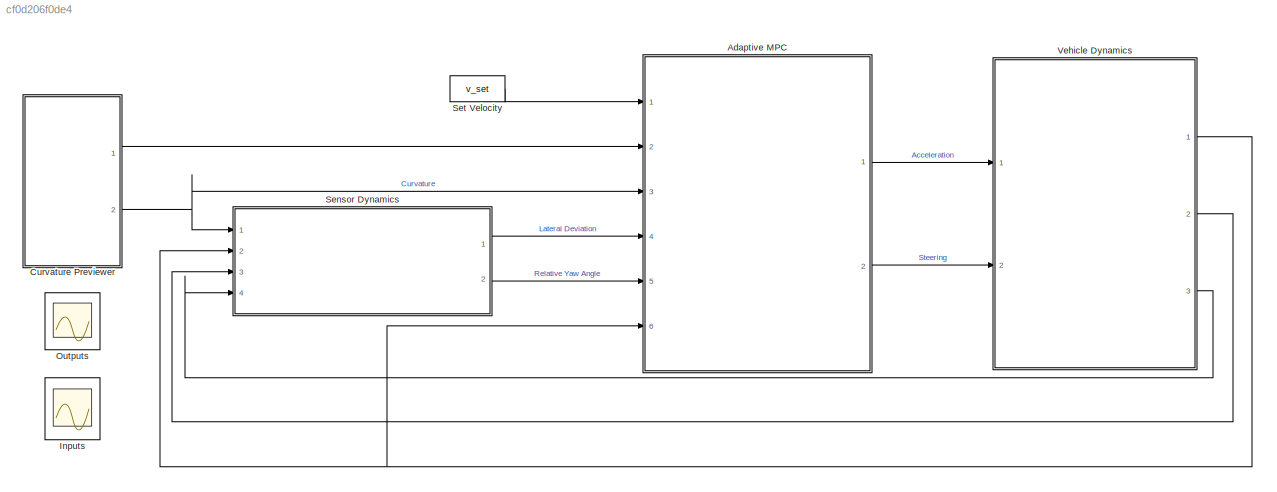
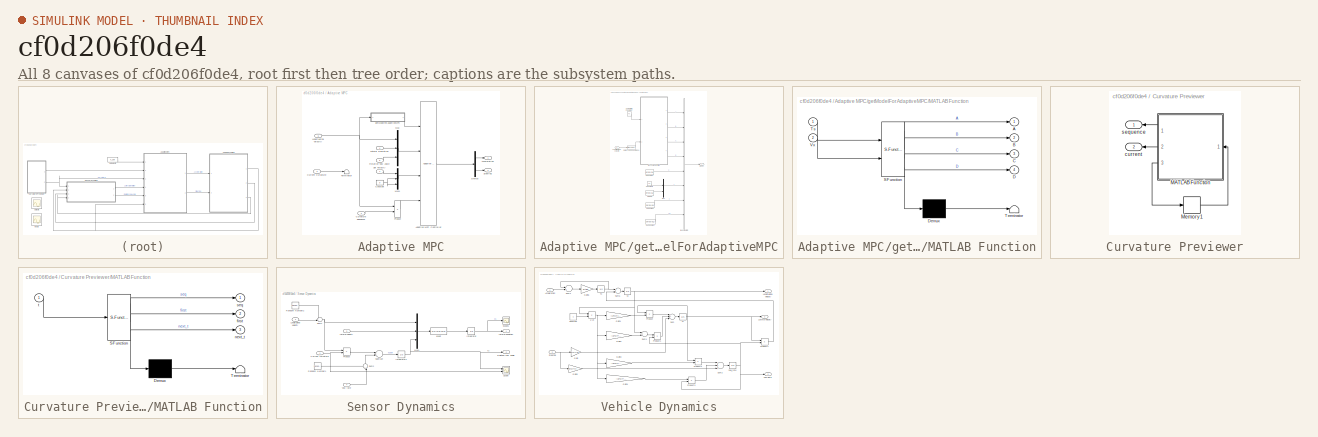
[diagram: thumbnail index - all 8 canvases of the model, root first then tree order]
MODEL slx_cf0d206f0de4
KIND model
CONFIG AbsTol = auto
CONFIG EnableMultiTasking = off
CONFIG FixedStep = auto
CONFIG MaxStep = auto
CONFIG MinStep = auto
CONFIG RelTol = 1e-3
CONFIG SampleTimeConstraint = Unconstrained
CONFIG Solver = VariableStepAuto
CONFIG SolverName = VariableStepAuto
CONFIG StartTime = 0.0
CONFIG StopTime = Duration
BLOCK [SubSystem] Adaptive MPC
  Ports = [6, 2]
  RequestExecContextInheritance = off
  VariantControl = controller_type == 2
BLOCK [Outport] Adaptive MPC/ Steering
  IconDisplay = Port number
  Port = 2
BLOCK [Outport] Adaptive MPC/Acceleration
  IconDisplay = Port number
BLOCK [Reference] Adaptive MPC/Adaptive MPC Controller  REF=mpclib/Adaptive MPC Controller  (lib defined in mdl_ae329e0e0455)
  Ports = [4, 1]
  SCDEnableBlockLinearizationSpecification = on
  SourceBlock = mpclib/Adaptive MPC Controller
  SourceProductBaseCode = MP
  SourceProductName = Model Predictive Control Toolbox
  SourceType = Adaptive MPC
BLOCK [Constant] Adaptive MPC/Constant
  Value = 0
BLOCK [Inport] Adaptive MPC/Current Curvature
  IconDisplay = Port number
  Port = 3
BLOCK [Inport] Adaptive MPC/Curvature Sequence
  IconDisplay = Port number
  Port = 2
BLOCK [Demux] Adaptive MPC/Demux
  DisplayOption = bar
  Outputs = 2
  Ports = [1, 2]
BLOCK [Inport] Adaptive MPC/Lateral Deviation
  IconDisplay = Port number
  Port = 4
BLOCK [Inport] Adaptive MPC/Longitudinal Velocity
  IconDisplay = Port number
  Port = 6
BLOCK [Mux] Adaptive MPC/Mux
  DisplayOption = bar
  Inputs = 3
  Ports = [3, 1]
BLOCK [Mux] Adaptive MPC/Mux1
  DisplayOption = bar
  Inputs = 3
  Ports = [3, 1]
BLOCK [Product] Adaptive MPC/Product
  InputSameDT = off
  OutDataTypeStr = Inherit: Inherit via internal rule
  Ports = [2, 1]
  RndMeth = Floor
  SaturateOnIntegerOverflow = off
BLOCK [Inport] Adaptive MPC/Relative Yaw Angle
  IconDisplay = Port number
  Port = 5
BLOCK [Inport] Adaptive MPC/Set velocity
  IconDisplay = Port number
BLOCK [Terminator] Adaptive MPC/Terminator
BLOCK [SubSystem] Adaptive MPC/getModelForAdaptiveMPC
  Ports = [1, 1]
  RequestExecContextInheritance = off
BLOCK [BusCreator] Adaptive MPC/getModelForAdaptiveMPC/Bus Creator2
  DisplayOption = bar
  InheritFromInputs = on
  Inputs = 8
  Ports = [8, 1]
BLOCK [Constant] Adaptive MPC/getModelForAdaptiveMPC/Constant3
  Value = v0
BLOCK [Constant] Adaptive MPC/getModelForAdaptiveMPC/DX Constant
  Value = zeros(6,1)
  VectorParams1D = off
BLOCK [DataTypeConversion] Adaptive MPC/getModelForAdaptiveMPC/Data Type Conversion1
  RndMeth = Floor
  SaturateOnIntegerOverflow = off
BLOCK [Inport] Adaptive MPC/getModelForAdaptiveMPC/Longitudinal velocity
  IconDisplay = Port number
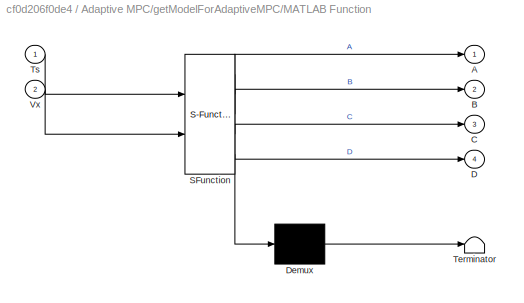
BLOCK [SubSystem] Adaptive MPC/getModelForAdaptiveMPC/MATLAB Function
  ErrorFcn = Stateflow.Translate.translate
  PermitHierarchicalResolution = ExplicitOnly
  Ports = [2, 4]
  RequestExecContextInheritance = off
  SFBlockType = MATLAB Function
  TreatAsAtomicUnit = on
BLOCK [Demux] Adaptive MPC/getModelForAdaptiveMPC/MATLAB Function/ Demux 
  Outputs = 1
  Ports = [1, 1]
BLOCK [S-Function] Adaptive MPC/getModelForAdaptiveMPC/MATLAB Function/ SFunction 
  EnableBusSupport = on
  FunctionName = sf_sfun
  PortCounts = [2 5]
  Ports = [2, 5]
  SFcnIsStateOwnerBlock = off
  SFunctionDeploymentMode = off
  Tag = Stateflow S-Function lane_following_AMPC 2
BLOCK [Terminator] Adaptive MPC/getModelForAdaptiveMPC/MATLAB Function/ Terminator 
BLOCK [Outport] Adaptive MPC/getModelForAdaptiveMPC/MATLAB Function/A
  IconDisplay = Port number
BLOCK [Outport] Adaptive MPC/getModelForAdaptiveMPC/MATLAB Function/B
  IconDisplay = Port number
  Port = 2
BLOCK [Outport] Adaptive MPC/getModelForAdaptiveMPC/MATLAB Function/C
  IconDisplay = Port number
  Port = 3
BLOCK [Outport] Adaptive MPC/getModelForAdaptiveMPC/MATLAB Function/D
  IconDisplay = Port number
  Port = 4
BLOCK [Inport] Adaptive MPC/getModelForAdaptiveMPC/MATLAB Function/Ts
  IconDisplay = Port number
BLOCK [Inport] Adaptive MPC/getModelForAdaptiveMPC/MATLAB Function/Vx
  IconDisplay = Port number
  Port = 2
BLOCK [Outport] Adaptive MPC/getModelForAdaptiveMPC/Model
  IconDisplay = Port number
BLOCK [Mux] Adaptive MPC/getModelForAdaptiveMPC/Mux
  DisplayOption = bar
  Inputs = 2
  Ports = [2, 1]
BLOCK [Constant] Adaptive MPC/getModelForAdaptiveMPC/Sample time constant
  Value = Ts
BLOCK [Constant] Adaptive MPC/getModelForAdaptiveMPC/U Constant
  Value = zeros(3,1)
  VectorParams1D = off
BLOCK [Constant] Adaptive MPC/getModelForAdaptiveMPC/X Constant
  Value = zeros(6,1)
  VectorParams1D = off
BLOCK [Constant] Adaptive MPC/getModelForAdaptiveMPC/ZEROS
  Value = zeros(2,1)
  VectorParams1D = off
BLOCK [SubSystem] Curvature Previewer
  Ports = [0, 2]
  RequestExecContextInheritance = off
BLOCK [SubSystem] Curvature Previewer/MATLAB Function
  ErrorFcn = Stateflow.Translate.translate
  PermitHierarchicalResolution = ExplicitOnly
  Ports = [1, 3]
  RequestExecContextInheritance = off
  SFBlockType = MATLAB Function
  TreatAsAtomicUnit = on
BLOCK [Demux] Curvature Previewer/MATLAB Function/ Demux 
  Outputs = 1
  Ports = [1, 1]
BLOCK [S-Function] Curvature Previewer/MATLAB Function/ SFunction 
  EnableBusSupport = on
  FunctionName = sf_sfun
  Parameters = data,steps
  PortCounts = [1 4]
  Ports = [1, 4]
  SFcnIsStateOwnerBlock = off
  SFunctionDeploymentMode = off
  Tag = Stateflow S-Function lane_following_AMPC 1
BLOCK [Terminator] Curvature Previewer/MATLAB Function/ Terminator 
BLOCK [Outport] Curvature Previewer/MATLAB Function/first
  IconDisplay = Port number
  Port = 2
BLOCK [Outport] Curvature Previewer/MATLAB Function/next_t
  IconDisplay = Port number
  Port = 3
BLOCK [Outport] Curvature Previewer/MATLAB Function/seq
  IconDisplay = Port number
BLOCK [Inport] Curvature Previewer/MATLAB Function/t
  IconDisplay = Port number
BLOCK [Memory] Curvature Previewer/Memory1
  InheritSampleTime = on
  LinearizeAsDelay = on
BLOCK [Outport] Curvature Previewer/current
  IconDisplay = Port number
  Port = 2
BLOCK [Outport] Curvature Previewer/sequence
  IconDisplay = Port number
BLOCK [Scope] Inputs
  Floating = on
  NumInputPorts = 1
  Ports = []
  ScopeSpecificationString = Simulink.scopes.TimeScopeBlockCfg('CurrentConfiguration', extmgr.ConfigurationSet(extmgr.Configuration('Core','General UI',true),extmgr.Configuration('Core','Source UI',true),extmgr.Configuration('Sources','WiredSimulink',true,'DataLoggingVariableName','ScopeData1'),extmgr.Configuration('Visuals','Time Domain',true,'SerializedDisplays',{struct('MinYLimReal','-0.19396','MaxYLimReal','0.11266','YLab...<+2729ch>
BLOCK [Scope] Outputs
  Floating = on
  NumInputPorts = 1
  Ports = []
  ScopeSpecificationString = Simulink.scopes.TimeScopeBlockCfg('CurrentConfiguration', extmgr.ConfigurationSet(extmgr.Configuration('Core','General UI',true),extmgr.Configuration('Core','Source UI',true),extmgr.Configuration('Sources','WiredSimulink',true),extmgr.Configuration('Visuals','Time Domain',true,'SerializedDisplays',{struct('MinYLimReal','14.34928','MaxYLimReal','20.85652','YLabelReal','','MinYLimMag','14.34928','Ma...<+2692ch>
BLOCK [SubSystem] Sensor Dynamics
  Ports = [4, 2]
  RequestExecContextInheritance = off
BLOCK [Inport] Sensor Dynamics/Current curvature
  IconDisplay = Port number
BLOCK [Integrator] Sensor Dynamics/Integrator
  Ports = [1, 1]
BLOCK [Integrator] Sensor Dynamics/Integrator2
  Ports = [1, 1]
BLOCK [Outport] Sensor Dynamics/Lateral deviation
  IconDisplay = Port number
BLOCK [Inport] Sensor Dynamics/Lateral velocity
  IconDisplay = Port number
  Port = 3
BLOCK [Inport] Sensor Dynamics/Longitudinal velocity
  IconDisplay = Port number
  Port = 2
BLOCK [Mux] Sensor Dynamics/Mux1
  DisplayOption = bar
  Inputs = [1 1 1]
  Ports = [3, 1]
BLOCK [Product] Sensor Dynamics/Product
  InputSameDT = off
  OutDataTypeStr = Inherit: Inherit via internal rule
  Ports = [2, 1]
  RndMeth = Floor
  SaturateOnIntegerOverflow = off
BLOCK [RandomNumber] Sensor Dynamics/Random Number1
  SampleTime = Ts
  Variance = 0.003
BLOCK [RandomNumber] Sensor Dynamics/Random Number2
  SampleTime = Ts
  Variance = 0.3
BLOCK [Outport] Sensor Dynamics/Relative yaw angle
  IconDisplay = Port number
  Port = 2
BLOCK [Scope] Sensor Dynamics/Scope
  Floating = off
  NumInputPorts = 2
  Ports = [2]
  ScopeSpecificationString = Simulink.scopes.TimeScopeBlockCfg('CurrentConfiguration', extmgr.ConfigurationSet(extmgr.Configuration('Core','General UI',true),extmgr.Configuration('Core','Source UI',true),extmgr.Configuration('Sources','WiredSimulink',true,'DataLoggingVariableName','ScopeData1'),extmgr.Configuration('Visuals','Time Domain',true,'SerializedDisplays',{struct('MinYLimReal','-0.04688','MaxYLimReal','0.05204','YLab...<+1417ch>
BLOCK [Scope] Sensor Dynamics/Scope1
  Floating = off
  NumInputPorts = 1
  Ports = [1]
  ScopeSpecificationString = Simulink.scopes.TimeScopeBlockCfg('CurrentConfiguration', extmgr.ConfigurationSet(extmgr.Configuration('Core','General UI',true),extmgr.Configuration('Core','Source UI',true),extmgr.Configuration('Sources','WiredSimulink',true,'DataLoggingVariableName','ScopeData1'),extmgr.Configuration('Visuals','Time Domain',true,'SerializedDisplays',{struct('MinYLimReal','-0.01564','MaxYLimReal','0.01736','YLab...<+1388ch>
BLOCK [Sum] Sensor Dynamics/Subtract
  InputSameDT = off
  Inputs = -+
  OutDataTypeStr = Inherit: Inherit via internal rule
  Ports = [2, 1]
  SaturateOnIntegerOverflow = off
BLOCK [Sum] Sensor Dynamics/Sum1
  IconShape = round
  InputSameDT = off
  Inputs = ++|
  OutDataTypeStr = Inherit: Inherit via internal rule
  Ports = [2, 1]
  SaturateOnIntegerOverflow = off
BLOCK [Sum] Sensor Dynamics/Sum2
  IconShape = round
  InputSameDT = off
  Inputs = ++|
  OutDataTypeStr = Inherit: Inherit via internal rule
  Ports = [2, 1]
  SaturateOnIntegerOverflow = off
BLOCK [Inport] Sensor Dynamics/Yaw rate
  IconDisplay = Port number
  Port = 4
BLOCK [Fcn] Sensor Dynamics/e1dot
  Expr = u(1)*u(3)+u(2)
BLOCK [Constant] Set Velocity
  Value = v_set
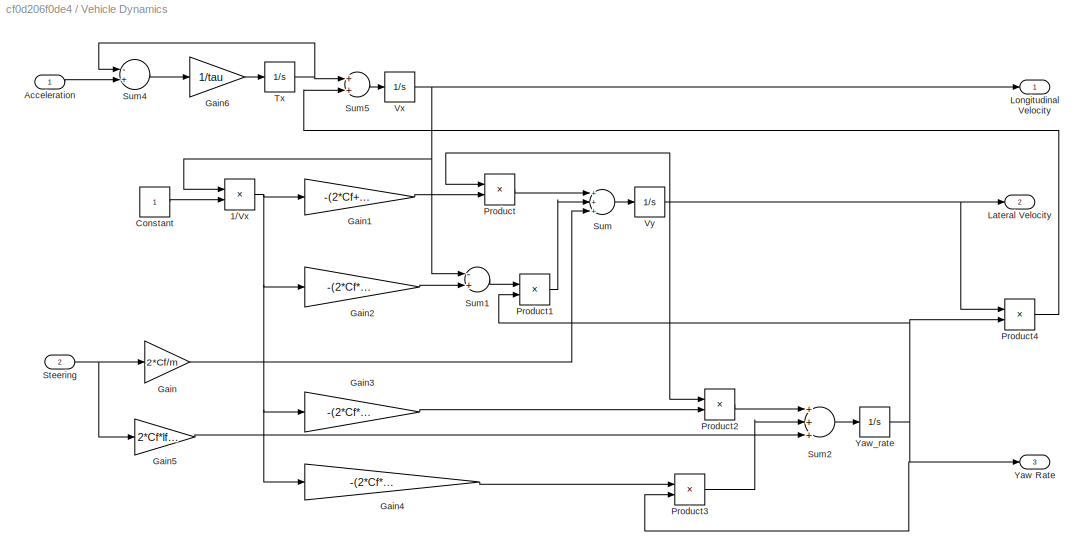
BLOCK [SubSystem] Vehicle Dynamics
  Ports = [2, 3]
  RequestExecContextInheritance = off
BLOCK [Product] Vehicle Dynamics/1//Vx
  InputSameDT = off
  Inputs = /*
  OutDataTypeStr = Inherit: Inherit via internal rule
  Ports = [2, 1]
  RndMeth = Floor
  SaturateOnIntegerOverflow = off
BLOCK [Inport] Vehicle Dynamics/Acceleration
  IconDisplay = Port number
BLOCK [Constant] Vehicle Dynamics/Constant
BLOCK [Gain] Vehicle Dynamics/Gain
  Gain = 2*Cf/m
  OutDataTypeStr = Inherit: Inherit via internal rule
  ParamDataTypeStr = Inherit: Inherit via internal rule
  SaturateOnIntegerOverflow = off
BLOCK [Gain] Vehicle Dynamics/Gain1
  Gain = -(2*Cf+2*Cr)/m
  OutDataTypeStr = Inherit: Inherit via internal rule
  ParamDataTypeStr = Inherit: Inherit via internal rule
  SaturateOnIntegerOverflow = off
BLOCK [Gain] Vehicle Dynamics/Gain2
  Gain = -(2*Cf*lf-2*Cr*lr)/m
  OutDataTypeStr = Inherit: Inherit via internal rule
  ParamDataTypeStr = Inherit: Inherit via internal rule
  SaturateOnIntegerOverflow = off
BLOCK [Gain] Vehicle Dynamics/Gain3
  Gain = -(2*Cf*lf-2*Cr*lr)/Iz
  OutDataTypeStr = Inherit: Inherit via internal rule
  ParamDataTypeStr = Inherit: Inherit via internal rule
  SaturateOnIntegerOverflow = off
BLOCK [Gain] Vehicle Dynamics/Gain4
  Gain = -(2*Cf*lf^2+2*Cr*lr^2)/Iz
  OutDataTypeStr = Inherit: Inherit via internal rule
  ParamDataTypeStr = Inherit: Inherit via internal rule
  SaturateOnIntegerOverflow = off
BLOCK [Gain] Vehicle Dynamics/Gain5
  Gain = 2*Cf*lf/Iz
  OutDataTypeStr = Inherit: Inherit via internal rule
  ParamDataTypeStr = Inherit: Inherit via internal rule
  SaturateOnIntegerOverflow = off
BLOCK [Gain] Vehicle Dynamics/Gain6
  Gain = 1/tau
  OutDataTypeStr = Inherit: Inherit via internal rule
  ParamDataTypeStr = Inherit: Inherit via internal rule
  SaturateOnIntegerOverflow = off
BLOCK [Outport] Vehicle Dynamics/Lateral Velocity
  IconDisplay = Port number
  Port = 2
BLOCK [Outport] Vehicle Dynamics/Longitudinal Velocity
  IconDisplay = Port number
BLOCK [Product] Vehicle Dynamics/Product
  InputSameDT = off
  OutDataTypeStr = Inherit: Inherit via internal rule
  Ports = [2, 1]
  RndMeth = Floor
  SaturateOnIntegerOverflow = off
BLOCK [Product] Vehicle Dynamics/Product1
  InputSameDT = off
  OutDataTypeStr = Inherit: Inherit via internal rule
  Ports = [2, 1]
  RndMeth = Floor
  SaturateOnIntegerOverflow = off
BLOCK [Product] Vehicle Dynamics/Product2
  InputSameDT = off
  OutDataTypeStr = Inherit: Inherit via internal rule
  Ports = [2, 1]
  RndMeth = Floor
  SaturateOnIntegerOverflow = off
BLOCK [Product] Vehicle Dynamics/Product3
  InputSameDT = off
  OutDataTypeStr = Inherit: Inherit via internal rule
  Ports = [2, 1]
  RndMeth = Floor
  SaturateOnIntegerOverflow = off
BLOCK [Product] Vehicle Dynamics/Product4
  InputSameDT = off
  OutDataTypeStr = Inherit: Inherit via internal rule
  Ports = [2, 1]
  RndMeth = Floor
  SaturateOnIntegerOverflow = off
BLOCK [Inport] Vehicle Dynamics/Steering
  IconDisplay = Port number
  Port = 2
BLOCK [Sum] Vehicle Dynamics/Sum
  InputSameDT = off
  Inputs = +++
  OutDataTypeStr = Inherit: Inherit via internal rule
  Ports = [3, 1]
  SaturateOnIntegerOverflow = off
BLOCK [Sum] Vehicle Dynamics/Sum1
  InputSameDT = off
  Inputs = -+
  OutDataTypeStr = Inherit: Inherit via internal rule
  Ports = [2, 1]
  SaturateOnIntegerOverflow = off
BLOCK [Sum] Vehicle Dynamics/Sum2
  InputSameDT = off
  Inputs = +++
  OutDataTypeStr = Inherit: Inherit via internal rule
  Ports = [3, 1]
  SaturateOnIntegerOverflow = off
BLOCK [Sum] Vehicle Dynamics/Sum4
  InputSameDT = off
  Inputs = -+
  OutDataTypeStr = Inherit: Inherit via internal rule
  Ports = [2, 1]
  SaturateOnIntegerOverflow = off
BLOCK [Sum] Vehicle Dynamics/Sum5
  InputSameDT = off
  OutDataTypeStr = Inherit: Inherit via internal rule
  Ports = [2, 1]
  SaturateOnIntegerOverflow = off
BLOCK [Integrator] Vehicle Dynamics/Tx
  Ports = [1, 1]
BLOCK [Integrator] Vehicle Dynamics/Vx
  InitialCondition = v0
  Ports = [1, 1]
BLOCK [Integrator] Vehicle Dynamics/Vy
  Ports = [1, 1]
BLOCK [Outport] Vehicle Dynamics/Yaw Rate
  IconDisplay = Port number
  Port = 3
BLOCK [Integrator] Vehicle Dynamics/Yaw_rate 
  Ports = [1, 1]
ANNOTATION Sensor Dynamics: e2
LINE Adaptive MPC/Adaptive MPC Controller:1 -> Adaptive MPC/Demux:1
NET Adaptive MPC/Constant:1 -> Adaptive MPC/Mux1:2, Adaptive MPC/Mux1:3
LINE Adaptive MPC/Current Curvature:1 -> Adaptive MPC/Terminator:1
LINE Adaptive MPC/Curvature Sequence:1 -> Adaptive MPC/Product:2
LINE Adaptive MPC/Demux:1 -> Adaptive MPC/Acceleration:1
LINE Adaptive MPC/Demux:2 -> Adaptive MPC/ Steering:1
LINE Adaptive MPC/Lateral Deviation:1 -> Adaptive MPC/Mux:2
NET Adaptive MPC/Longitudinal Velocity:1 -> Adaptive MPC/Mux:1, Adaptive MPC/Product:1, Adaptive MPC/getModelForAdaptiveMPC:1
LINE Adaptive MPC/Mux1:1 -> Adaptive MPC/Adaptive MPC Controller:3
LINE Adaptive MPC/Mux:1 -> Adaptive MPC/Adaptive MPC Controller:2
LINE Adaptive MPC/Product:1 -> Adaptive MPC/Adaptive MPC Controller:4
LINE Adaptive MPC/Relative Yaw Angle:1 -> Adaptive MPC/Mux:3
LINE Adaptive MPC/Set velocity:1 -> Adaptive MPC/Mux1:1
LINE Adaptive MPC/getModelForAdaptiveMPC/Bus Creator2:1 -> Adaptive MPC/getModelForAdaptiveMPC/Model:1
LINE Adaptive MPC/getModelForAdaptiveMPC/Constant3:1 -> Adaptive MPC/getModelForAdaptiveMPC/Mux:1
LINE Adaptive MPC/getModelForAdaptiveMPC/DX Constant:1 -> Adaptive MPC/getModelForAdaptiveMPC/Bus Creator2:8
LINE Adaptive MPC/getModelForAdaptiveMPC/Data Type Conversion1:1 -> Adaptive MPC/getModelForAdaptiveMPC/MATLAB Function:2
LINE Adaptive MPC/getModelForAdaptiveMPC/Longitudinal velocity:1 -> Adaptive MPC/getModelForAdaptiveMPC/Data Type Conversion1:1
LINE Adaptive MPC/getModelForAdaptiveMPC/MATLAB Function:1 -> Adaptive MPC/getModelForAdaptiveMPC/Bus Creator2:1
LINE Adaptive MPC/getModelForAdaptiveMPC/MATLAB Function:2 -> Adaptive MPC/getModelForAdaptiveMPC/Bus Creator2:2
LINE Adaptive MPC/getModelForAdaptiveMPC/MATLAB Function:3 -> Adaptive MPC/getModelForAdaptiveMPC/Bus Creator2:3
LINE Adaptive MPC/getModelForAdaptiveMPC/MATLAB Function:4 -> Adaptive MPC/getModelForAdaptiveMPC/Bus Creator2:4
LINE Adaptive MPC/getModelForAdaptiveMPC/Mux:1 -> Adaptive MPC/getModelForAdaptiveMPC/Bus Creator2:6
LINE Adaptive MPC/getModelForAdaptiveMPC/Sample time constant:1 -> Adaptive MPC/getModelForAdaptiveMPC/MATLAB Function:1
LINE Adaptive MPC/getModelForAdaptiveMPC/U Constant:1 -> Adaptive MPC/getModelForAdaptiveMPC/Bus Creator2:5
LINE Adaptive MPC/getModelForAdaptiveMPC/X Constant:1 -> Adaptive MPC/getModelForAdaptiveMPC/Bus Creator2:7
LINE Adaptive MPC/getModelForAdaptiveMPC/ZEROS:1 -> Adaptive MPC/getModelForAdaptiveMPC/Mux:2
LINE Adaptive MPC/getModelForAdaptiveMPC:1 -> Adaptive MPC/Adaptive MPC Controller:1
LINE Adaptive MPC:1 -> Vehicle Dynamics:1
LINE Adaptive MPC:2 -> Vehicle Dynamics:2
LINE Curvature Previewer/MATLAB Function:1 -> Curvature Previewer/sequence:1
LINE Curvature Previewer/MATLAB Function:2 -> Curvature Previewer/current:1
LINE Curvature Previewer/MATLAB Function:3 -> Curvature Previewer/Memory1:1
LINE Curvature Previewer/Memory1:1 -> Curvature Previewer/MATLAB Function:1
LINE Curvature Previewer:1 -> Adaptive MPC:2
NET Curvature Previewer:2 -> Adaptive MPC:3, Sensor Dynamics:1
NET Sensor Dynamics/Current curvature:1 -> Sensor Dynamics/Product:2, Sensor Dynamics/Scope:2
NET Sensor Dynamics/Integrator2:1 -> Sensor Dynamics/Mux1:3, Sensor Dynamics/Relative yaw angle:1, Sensor Dynamics/Scope:1
NET Sensor Dynamics/Integrator:1 -> Sensor Dynamics/Lateral deviation:1, Sensor Dynamics/Scope1:1
LINE Sensor Dynamics/Lateral velocity:1 -> Sensor Dynamics/Mux1:2
LINE Sensor Dynamics/Longitudinal velocity:1 -> Sensor Dynamics/Sum1:2
LINE Sensor Dynamics/Mux1:1 -> Sensor Dynamics/e1dot:1
LINE Sensor Dynamics/Product:1 -> Sensor Dynamics/Subtract:1
LINE Sensor Dynamics/Random Number1:1 -> Sensor Dynamics/Sum2:1
LINE Sensor Dynamics/Random Number2:1 -> Sensor Dynamics/Sum1:1
LINE Sensor Dynamics/Subtract:1 -> Sensor Dynamics/Integrator2:1
NET Sensor Dynamics/Sum1:1 -> Sensor Dynamics/Mux1:1, Sensor Dynamics/Product:1
LINE Sensor Dynamics/Sum2:1 -> Sensor Dynamics/Subtract:2
LINE Sensor Dynamics/Yaw rate:1 -> Sensor Dynamics/Sum2:2
LINE Sensor Dynamics/e1dot:1 -> Sensor Dynamics/Integrator:1
LINE Sensor Dynamics:1 -> Adaptive MPC:4
LINE Sensor Dynamics:2 -> Adaptive MPC:5
LINE Set Velocity:1 -> Adaptive MPC:1
NET Vehicle Dynamics/1//Vx:1 -> Vehicle Dynamics/Gain1:1, Vehicle Dynamics/Gain2:1, Vehicle Dynamics/Gain3:1, Vehicle Dynamics/Gain4:1
LINE Vehicle Dynamics/Acceleration:1 -> Vehicle Dynamics/Sum4:2
LINE Vehicle Dynamics/Constant:1 -> Vehicle Dynamics/1//Vx:2
LINE Vehicle Dynamics/Gain1:1 -> Vehicle Dynamics/Product:2
LINE Vehicle Dynamics/Gain2:1 -> Vehicle Dynamics/Sum1:2
LINE Vehicle Dynamics/Gain3:1 -> Vehicle Dynamics/Product2:2
LINE Vehicle Dynamics/Gain4:1 -> Vehicle Dynamics/Product3:1
LINE Vehicle Dynamics/Gain5:1 -> Vehicle Dynamics/Sum2:3
LINE Vehicle Dynamics/Gain6:1 -> Vehicle Dynamics/Tx:1
LINE Vehicle Dynamics/Gain:1 -> Vehicle Dynamics/Sum:3
LINE Vehicle Dynamics/Product1:1 -> Vehicle Dynamics/Sum:2
LINE Vehicle Dynamics/Product2:1 -> Vehicle Dynamics/Sum2:1
LINE Vehicle Dynamics/Product3:1 -> Vehicle Dynamics/Sum2:2
LINE Vehicle Dynamics/Product4:1 -> Vehicle Dynamics/Sum5:2
LINE Vehicle Dynamics/Product:1 -> Vehicle Dynamics/Sum:1
NET Vehicle Dynamics/Steering:1 -> Vehicle Dynamics/Gain5:1, Vehicle Dynamics/Gain:1
LINE Vehicle Dynamics/Sum1:1 -> Vehicle Dynamics/Product1:1
LINE Vehicle Dynamics/Sum2:1 -> Vehicle Dynamics/Yaw_rate :1
LINE Vehicle Dynamics/Sum4:1 -> Vehicle Dynamics/Gain6:1
LINE Vehicle Dynamics/Sum5:1 -> Vehicle Dynamics/Vx:1
LINE Vehicle Dynamics/Sum:1 -> Vehicle Dynamics/Vy:1
NET Vehicle Dynamics/Tx:1 -> Vehicle Dynamics/Sum4:1, Vehicle Dynamics/Sum5:1
NET Vehicle Dynamics/Vx:1 -> Vehicle Dynamics/1//Vx:1, Vehicle Dynamics/Longitudinal Velocity:1, Vehicle Dynamics/Sum1:1
NET Vehicle Dynamics/Vy:1 -> Vehicle Dynamics/Lateral Velocity:1, Vehicle Dynamics/Product2:1, Vehicle Dynamics/Product4:1, Vehicle Dynamics/Product:1
NET Vehicle Dynamics/Yaw_rate :1 -> Vehicle Dynamics/Product1:2, Vehicle Dynamics/Product3:2, Vehicle Dynamics/Product4:2, Vehicle Dynamics/Yaw Rate:1
NET Vehicle Dynamics:1 -> Adaptive MPC:6, Sensor Dynamics:2
LINE Vehicle Dynamics:2 -> Sensor Dynamics:3
LINE Vehicle Dynamics:3 -> Sensor Dynamics:4
note: NET lines group one-source signal fan-out (src -> all destinations, sorted); 1:1 wires keep LINE
CHART Curvature Previewer/MATLAB Function states=1 transitions=1
  STATE_LABEL 'eML_blk_kernel()'
  STATE_LABEL "SCRIPT:\nfunction [seq,first,next_t] = fcn(data,steps,t)\n%#codegen\n[seq,first,next_t] = mpcblock_preview('md',data,steps,t);"
CHART Adaptive MPC/getModelForAdaptiveMPC/MATLAB Function states=1 transitions=1
  STATE_LABEL 'eML_blk_kernel()'
  STATE_LABEL 'SCRIPT:\n  function [A,B,C,D] = getAdaptiveMPCModel(Ts,Vx)\n% Get discrete state-space model for Adaptive MPC with sample time Ts.\n% Called by the "Lane Keeping Assist System" Block.\n\n% Inputs:\n%   Ts:               mask variable for sample time\n%   Vx:               mask inport for longitudinal velocity\n%   Curvature:        mask inport for curvature\n%   lastU:            last MV value for MPC\n%   ...<+964ch>'
